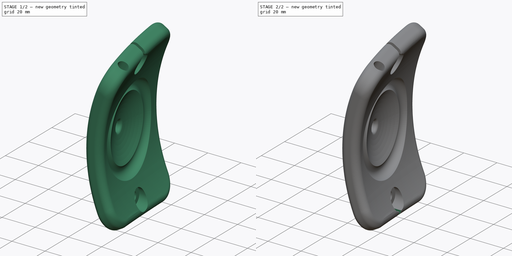
[diagram: build sequence overview — one tinted view per stage of 2, left to right]
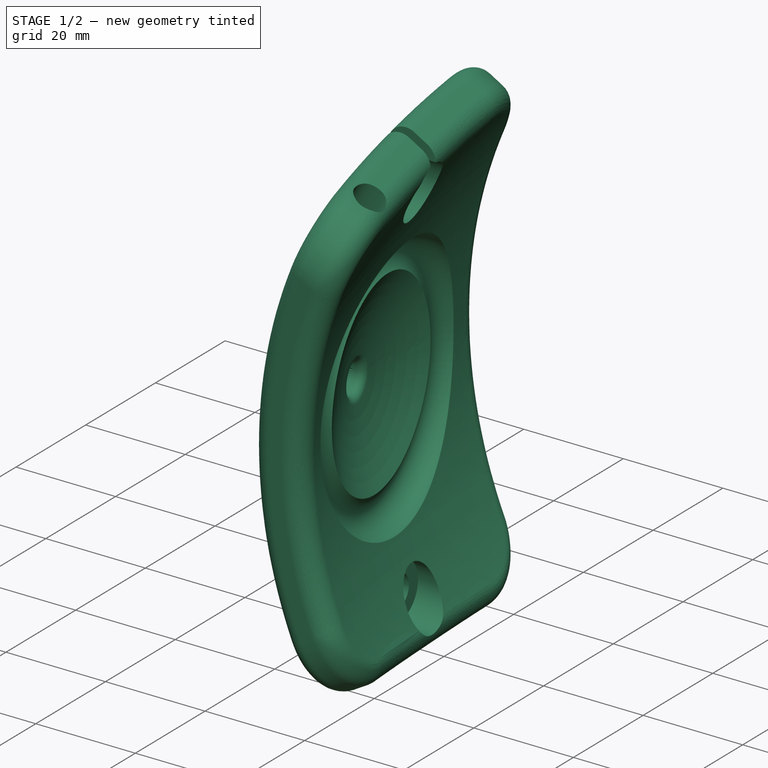
[diagram: stage 1 of 2 — iso view after this stage's code; geometry added in this stage tinted green]
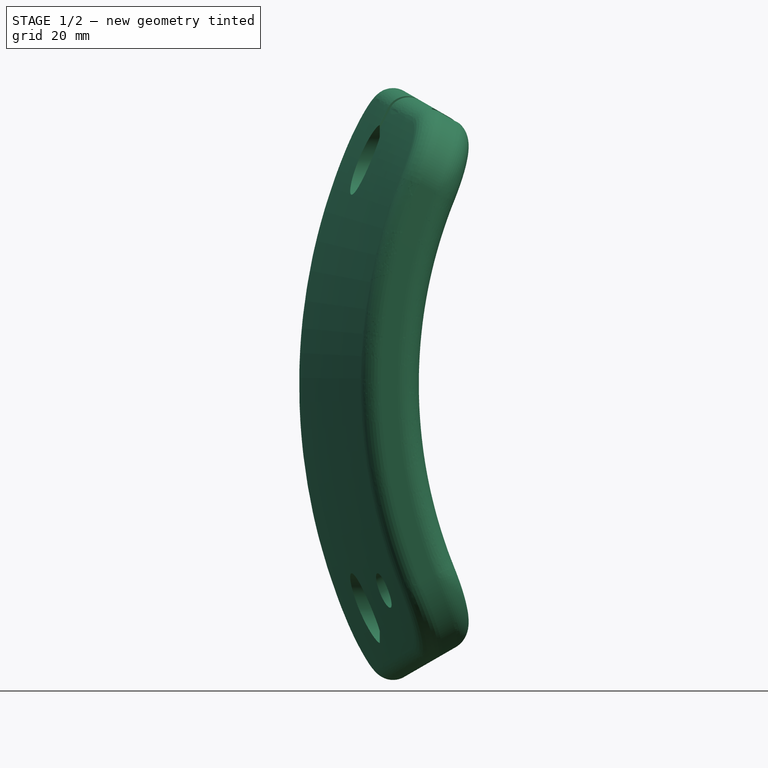
[diagram: stage 1 of 2 — front view after this stage's code; geometry added in this stage tinted green]
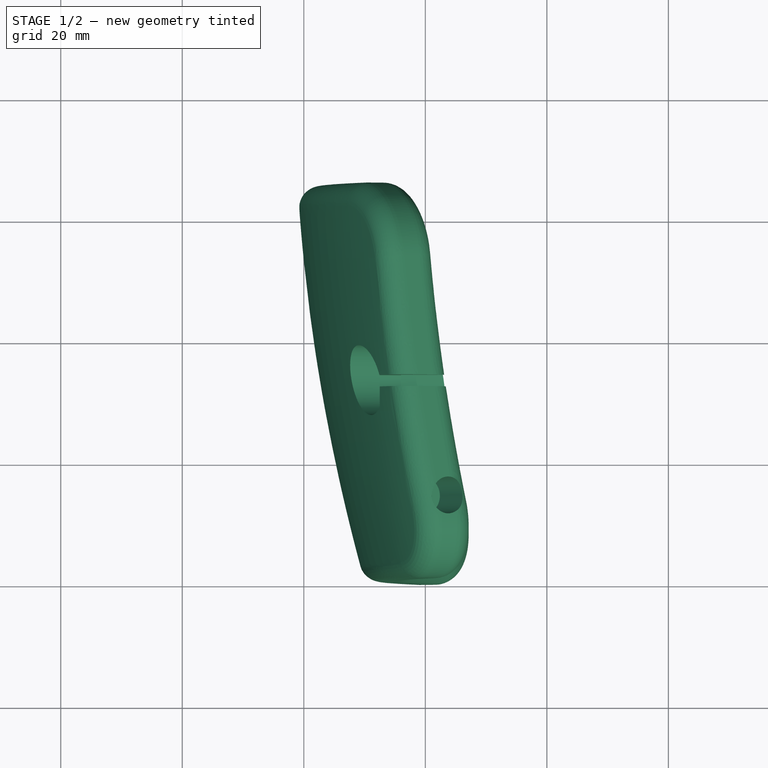
[diagram: stage 1 of 2 — top view after this stage's code; geometry added in this stage tinted green]
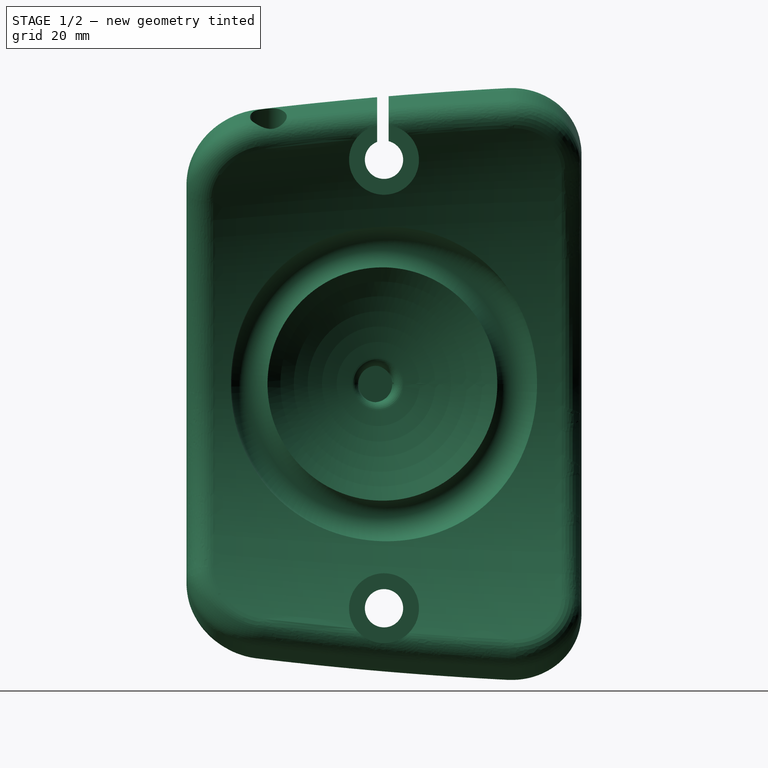
[diagram: stage 1 of 2 — right view after this stage's code; geometry added in this stage tinted green]
FCSTD DOCUMENT  (FreeCAD 0.17R13541 (Git))
Label: left_patch_v2
License: All rights reserved
LicenseURL: http://en.wikipedia.org/wiki/All_rights_reserved
objects: Sketcher::SketchObject×10, PartDesign::Plane×4, PartDesign::Pocket×4, PartDesign::Fillet×3, PartDesign::Groove×2, PartDesign::Mirrored×2, PartDesign::Revolution×1, PartDesign::Line×1, PartDesign::SubtractiveSphere×1, PartDesign::SubtractiveTorus×1, PartDesign::SubtractiveCylinder×1, PartDesign::SubtractiveLoft×1, PartDesign::Body×1
note: 43 computed .brp shape members not serialized (recipe doc carries the construction recipe); baked Part::Feature solids carry a one-line shape summary decoded from their .brp

FEATURE [Sketcher::SketchObject] Sketch
  MapMode = 5
  Support = -> [XY_Plane]
  sketch-geometry (14):
    g0: LineSegment StartX=-90 StartY=0 StartZ=0 EndX=-80 EndY=0 EndZ=0
    g1: LineSegment StartX=-101 StartY=65 StartZ=0 EndX=-91 EndY=65 EndZ=0
    g2: Circle [constr] CenterX=-101 CenterY=65 CenterZ=0 NormalX=0 NormalY=0 NormalZ=1 AngleXU=0 Radius=1
    g3: Circle [constr] CenterX=-99 CenterY=32.5 CenterZ=0 NormalX=0 NormalY=0 NormalZ=1 AngleXU=0 Radius=1
    g4: Circle [constr] CenterX=-90 CenterY=0 CenterZ=0 NormalX=0 NormalY=0 NormalZ=1 AngleXU=0 Radius=1
    g5: BSplineCurve PolesCount=3 KnotsCount=2 Degree=2 IsPeriodic=0
    g6: GeomPoint [constr] X=-101 Y=65 Z=0
    g7: GeomPoint [constr] X=-90 Y=0 Z=0
    g8: Circle [constr] CenterX=-91 CenterY=65 CenterZ=0 NormalX=0 NormalY=0 NormalZ=1 AngleXU=0 Radius=1
    g9: Circle [constr] CenterX=-89 CenterY=32.5 CenterZ=0 NormalX=0 NormalY=0 NormalZ=1 AngleXU=0 Radius=1
    g10: Circle [constr] CenterX=-80 CenterY=0 CenterZ=0 NormalX=0 NormalY=0 NormalZ=1 AngleXU=0 Radius=1
    g11: BSplineCurve PolesCount=3 KnotsCount=2 Degree=2 IsPeriodic=0
    g12: GeomPoint [constr] X=-91 Y=65 Z=0
    g13: GeomPoint [constr] X=-80 Y=0 Z=0
  constraints (32):
    c: Horizontal(g0)
    c: Horizontal(g1)
    c: Coincident(g2,g1)
    c: Radius(g2) = 1
    c: Equal(g2,g3)
    c: Equal(g2,g4)
    c: Coincident(g4,g0)
    c: InternalAlignment(g2,g5)
    c: InternalAlignment(g3,g5)
    c: InternalAlignment(g4,g5)
    c: InternalAlignment(g6,g5)
    c: InternalAlignment(g7,g5)
    c: Coincident(g8,g1)
    c: Radius(g8) = 1
    c: Equal(g8,g9)
    c: Equal(g8,g10)
    c: Coincident(g10,g0)
    c: InternalAlignment(g8,g11)
    c: InternalAlignment(g9,g11)
    c: InternalAlignment(g10,g11)
    c: InternalAlignment(g12,g11)
    c: InternalAlignment(g13,g11)
    c: DistanceX(g1,g1) = 10
    c: DistanceX(g0,g0) = 10
    c: DistanceY(g0,g1) = 65
    c: DistanceY(g0,g-1) = 0
    c: DistanceY(g0,g9) = 32.5
    c: DistanceY(g0,g3) = 32.5
    c: DistanceX(g0,g-1) = 80
    c: DistanceX(g3,g9) = 10
    c: DistanceX(g9,g0) = 9
    c: DistanceX(g1,g0) = 11
FEATURE [PartDesign::Revolution] Revolution
  Angle = 60
  Axis = (0,1,0)
  Base = (0,0,0)
  Midplane = true
  Profile = -> Sketch
  ReferenceAxis = -> Sketch [V_Axis]
FEATURE [Sketcher::SketchObject] Sketch001
  MapMode = 5
  Support = -> [XY_Plane]
  sketch-geometry (5):
    g0: ArcOfCircle CenterX=-94.4837 CenterY=33.5655 CenterZ=0 NormalX=0 NormalY=0 NormalZ=1 AngleXU=0 Radius=0.625 StartAngle=0.174533 EndAngle=3.31613
    g1: ArcOfCircle CenterX=-93.6155 CenterY=28.6415 CenterZ=0 NormalX=0 NormalY=0 NormalZ=1 AngleXU=0 Radius=0.625 StartAngle=3.31613 EndAngle=6.45772
    g2: LineSegment StartX=-95.0993 StartY=33.457 StartZ=0 EndX=-94.231 EndY=28.5329 EndZ=0
    g3: LineSegment StartX=-93.8682 StartY=33.674 StartZ=0 EndX=-93 EndY=28.75 EndZ=0
    g4: LineSegment [constr] StartX=-13 StartY=33.8377 StartZ=0 EndX=-13 EndY=-7.32293 EndZ=0
  constraints (12):
    c: Tangent(g0,g3) = 1.5708
    c: Tangent(g0,g2) = -1.5708
    c: Tangent(g2,g1) = -1.5708
    c: Tangent(g3,g1) = 1.5708
    c: Equal(g0,g1)
    c: Angle(g-1,g3) = 1.74533
    c: Distance(g1,g0) = 5
    c: Distance(g0,g0) = 1.25
    c: DistanceX(g1,g-1) = 93
    c: DistanceY(g-1,g1) = 28.75
    c: Vertical(g4)
    c: DistanceX(g1,g4) = 80
FEATURE [PartDesign::Line] DatumLine
  AttacherType = Attacher::AttachEngineLine
  AttachmentOffset = pos=(0,0,-270) rot=(0,1,0;0.174533rad)
  MapMode = 16
  Placement = pos=(-270,0,0) rot=(0.510274,0.60812,0.60812;2.19793rad)
  Support = -> [X_Axis]
FEATURE [PartDesign::SubtractiveSphere] Sphere
  Angle1 = -90
  Angle2 = 90
  Angle3 = 360
  AttacherType = Attacher::AttachEngine3D
  AttachmentOffset = pos=(0,0,223) rot=(0,0,1;0rad)
  BaseFeature = -> Revolution
  MapMode = 2
  Placement = pos=(-50.3879,38.7235,0) rot=(0.510274,0.60812,0.60812;2.19793rad)
  Radius = 42
  Support = -> [DatumLine]
FEATURE [PartDesign::SubtractiveTorus] Torus
  Angle1 = -180
  Angle2 = 180
  Angle3 = 360
  AttacherType = Attacher::AttachEngine3D
  AttachmentOffset = pos=(0,0,188.5) rot=(0,0,1;0rad)
  BaseFeature = -> Sphere
  MapMode = 2
  Placement = pos=(-84.3637,32.7327,0) rot=(0.510274,0.60812,0.60812;2.19793rad)
  Radius1 = 22
  Radius2 = 4
  Support = -> [DatumLine]
FEATURE [PartDesign::SubtractiveCylinder] Cylinder
  Angle = 360
  AttacherType = Attacher::AttachEngine3D
  AttachmentOffset = pos=(0,0,178) rot=(0,0,1;0rad)
  BaseFeature = -> Torus
  Height = 12
  MapMode = 2
  Placement = pos=(-94.7042,30.9094,0) rot=(0.510274,0.60812,0.60812;2.19793rad)
  Radius = 3
  Support = -> [DatumLine]
FEATURE [PartDesign::Fillet] Fillet003
  Base = -> Cylinder [Edge7,Edge10,Edge9,Edge6]
  BaseFeature = -> Cylinder
  Placement = pos=(-94.7042,30.9094,0) rot=(0.510274,0.60812,0.60812;2.19793rad)
  Radius = 12
FEATURE [PartDesign::Plane] DatumPlane
  AttachmentOffset = pos=(0,0,-32.5) rot=(0,0,1;0rad)
  MapMode = 5
  Placement = pos=(0,32.5,3e-12) rot=(1,0,0;1.5708rad)
  Support = -> [XZ_Plane]
FEATURE [Sketcher::SketchObject] Sketch002
  MapMode = 5
  Placement = pos=(0,32.5,3e-12) rot=(1,0,0;1.5708rad)
  Support = -> [DatumPlane]
  sketch-geometry (10):
    g0: LineSegment StartX=-68 StartY=42.65 StartZ=0 EndX=-84 EndY=42.65 EndZ=0
    g1: LineSegment StartX=-84 StartY=42.65 StartZ=0 EndX=-84 EndY=40.05 EndZ=0
    g2: LineSegment StartX=-86 StartY=40.15 StartZ=0 EndX=-86 EndY=40.15 EndZ=0
    g3: LineSegment StartX=-87.5 StartY=40.05 StartZ=0 EndX=-87.5 EndY=42.65 EndZ=0
    g4: LineSegment StartX=-87.5 StartY=42.65 StartZ=0 EndX=-100 EndY=42.65 EndZ=0
    g5: LineSegment StartX=-100 StartY=42.65 StartZ=0 EndX=-100 EndY=36.9 EndZ=0
    g6: LineSegment StartX=-100 StartY=36.9 StartZ=0 EndX=-68 EndY=36.9 EndZ=0
    g7: LineSegment StartX=-68 StartY=36.9 StartZ=0 EndX=-68 EndY=42.65 EndZ=0
    g8: LineSegment [constr] StartX=-100 StartY=36.9 StartZ=0 EndX=-104.145 EndY=36.9 EndZ=0
    g9: LineSegment StartX=-87.5 StartY=40.05 StartZ=0 EndX=-84 EndY=40.05 EndZ=0
  constraints (27):
    c: Horizontal(g0)
    c: Coincident(g0,g1)
    c: Vertical(g1)
    c: Vertical(g2)
    c: Vertical(g3)
    c: Coincident(g3,g4)
    c: Horizontal(g4)
    c: Coincident(g4,g5)
    c: Vertical(g5)
    c: Coincident(g5,g6)
    c: Horizontal(g6)
    c: Coincident(g6,g7)
    c: Vertical(g7)
    c: Coincident(g7,g0)
    c: DistanceY(g7,g7) = 5.75
    c: DistanceY(g5,g5) = 5.75
    c: DistanceY(g-1,g6) = 36.9
    c: DistanceX(g6,g6) = 32
    c: DistanceX(g4,g4) = 12.5
    c: DistanceX(g6,g-1) = 68
    c: Coincident(g8,g5)
    c: Horizontal(g8)
    c: Coincident(g9,g3)
    c: Coincident(g9,g1)
    c: DistanceX(g9,g9) = 3.5
    c: DistanceY(g6,g1) = 3.15
    c: Horizontal(g9)
FEATURE [PartDesign::Fillet] Fillet
  Base = -> Fillet003 [Edge11,Edge1]
  BaseFeature = -> Fillet003
  Placement = pos=(-94.7042,30.9094,0) rot=(0.510274,0.60812,0.60812;2.19793rad)
  Radius = 3.5
FEATURE [PartDesign::Fillet] Fillet004
  Base = -> Fillet [Edge61]
  BaseFeature = -> Fillet
  Placement = pos=(-94.7042,30.9094,0) rot=(0.510274,0.60812,0.60812;2.19793rad)
  Radius = 1.5
FEATURE [PartDesign::Groove] Groove
  Angle = 360
  Axis = (-4.14485,0,0)
  Base = (-100,32.5,36.9)
  BaseFeature = -> Fillet004
  Placement = pos=(-94.7042,30.9094,0) rot=(0.510274,0.60812,0.60812;2.19793rad)
  Profile = -> Sketch002
  ReferenceAxis = -> Sketch002 [Axis0]
FEATURE [PartDesign::Mirrored] Mirrored
  BaseFeature = -> Groove
  MirrorPlane = -> XY_Plane
  Originals = -> [Groove]
  Placement = pos=(-94.7042,30.9094,0) rot=(0.510274,0.60812,0.60812;2.19793rad)
FEATURE [PartDesign::Plane] DatumPlane001
  AttachmentOffset = pos=(0,0,0) rot=(0,1,0;0.523599rad)
  MapMode = 5
  Placement = pos=(0,0,0) rot=(0,1,0;0.523599rad)
  Support = -> [XY_Plane]
FEATURE [Sketcher::SketchObject] Sketch003
  MapMode = 5
  Placement = pos=(0,0,0) rot=(0,1,0;0.523599rad)
  Support = -> [DatumPlane001]
  sketch-geometry (1):
    g0: Circle CenterX=-88.0221 CenterY=13.481 CenterZ=0 NormalX=0 NormalY=0 NormalZ=1 AngleXU=0 Radius=3.025
  constraints (1):
    c: Radius(g0) = 3.025
FEATURE [PartDesign::Pocket] Pocket
  BaseFeature = -> Mirrored
  Length = 8
  Length2 = 100
  Placement = pos=(-94.7042,30.9094,0) rot=(0.510274,0.60812,0.60812;2.19793rad)
  Profile = -> Sketch003
  Type = 0
FEATURE [Sketcher::SketchObject] Sketch004
  MapMode = 5
  Placement = pos=(-75.0282,30.9094,34.0799) rot=(-0.247812,0.288526,-0.924847;1.49687rad)
  Support = -> [Pocket]
  sketch-geometry (1):
    g0: Circle CenterX=16.4108 CenterY=-8.60062 CenterZ=0 NormalX=0 NormalY=0 NormalZ=1 AngleXU=0 Radius=1.5
  constraints (1):
    c: Radius(g0) = 1.5
FEATURE [PartDesign::Plane] DatumPlane002
  AttachmentOffset = pos=(0,0,0) rot=(0,1,0;0.261799rad)
  MapMode = 5
  Placement = pos=(0,0,0) rot=(0,1,0;0.261799rad)
  Support = -> [XY_Plane]
FEATURE [Sketcher::SketchObject] Sketch005
  MapMode = 5
  Placement = pos=(0,0,0) rot=(0,1,0;0.261799rad)
  Support = -> [DatumPlane002]
  sketch-geometry (5):
    g0: Ellipse CenterX=-90.2422 CenterY=17.6008 CenterZ=0 NormalX=0 NormalY=0 NormalZ=1 MajorRadius=2.5 MinorRadius=0.55 AngleXU=1.74989
    g1: LineSegment [constr] StartX=-90.6875 StartY=20.0608 StartZ=0 EndX=-89.7968 EndY=15.1407 EndZ=0
    g2: LineSegment [constr] StartX=-90.7834 StartY=17.5028 StartZ=0 EndX=-89.701 EndY=17.6987 EndZ=0
    g3: GeomPoint X=-90.6766 Y=20.0005 Z=0
    g4: GeomPoint X=-89.8077 Y=15.201 Z=0
  constraints (3):
    c: InternalAlignment(g1-g4 -> g0) x4
    c: Distance(g2,g2) = 1.1
    c: Distance(g1) = 5
FEATURE [PartDesign::SubtractiveLoft] SubtractiveLoft
  BaseFeature = -> Pocket
  Closed = false
  Placement = pos=(-94.7042,30.9094,0) rot=(0.510274,0.60812,0.60812;2.19793rad)
  Profile = -> Sketch001
  Ruled = false
  Sections = -> [Sketch005,Sketch004]
FEATURE [PartDesign::Plane] DatumPlane003
  AttachmentOffset = pos=(0,-240,0) rot=(-1,0,0;0.436332rad)
  MapMode = 5
  Placement = pos=(2.7e-11,-2.7e-11,-240) rot=(0.473306,0.473306,0.742942;1.86366rad)
  Support = -> [YZ_Plane]
FEATURE [Sketcher::SketchObject] Sketch006
  MapMode = 5
  Placement = pos=(2.7e-11,-2.7e-11,-240) rot=(0.473306,0.473306,0.742942;1.86366rad)
  Support = -> [DatumPlane003]
  sketch-geometry (1):
    g0: Circle CenterX=12.8606 CenterY=223.407 CenterZ=0 NormalX=0 NormalY=0 NormalZ=1 AngleXU=0 Radius=3.025
  constraints (1):
    c: Radius(g0) = 3.025
FEATURE [PartDesign::Pocket] Pocket001
  BaseFeature = -> SubtractiveLoft
  Length = 13
  Length2 = 100
  Placement = pos=(-94.7042,30.9094,0) rot=(0.510274,0.60812,0.60812;2.19793rad)
  Profile = -> Sketch006
  Reversed = true
  Type = 0
FEATURE [Sketcher::SketchObject] Sketch007
  MapMode = 5
  Support = -> [XY_Plane]
  sketch-geometry (1):
    g0: Circle CenterX=-89.3905 CenterY=13.0817 CenterZ=0 NormalX=0 NormalY=0 NormalZ=1 AngleXU=0 Radius=1.5
  constraints (1):
    c: Radius(g0) = 1.5
FEATURE [Sketcher::SketchObject] Sketch009
  MapMode = 5
  Placement = pos=(0,0,0) rot=(0,1,0;0.523599rad)
  Support = -> [DatumPlane001]
  sketch-geometry (4):
    g0: LineSegment StartX=-102.706 StartY=33.27 StartZ=0 EndX=-82.0468 EndY=33.27 EndZ=0
    g1: LineSegment StartX=-82.0468 StartY=33.27 StartZ=0 EndX=-82.0468 EndY=31.37 EndZ=0
    g2: LineSegment StartX=-82.0468 StartY=31.37 StartZ=0 EndX=-102.706 EndY=31.37 EndZ=0
    g3: LineSegment StartX=-102.706 StartY=31.37 StartZ=0 EndX=-102.706 EndY=33.27 EndZ=0
  constraints (10):
    c: Coincident(g0,g1)
    c: Coincident(g1,g2)
    c: Coincident(g2,g3)
    c: Coincident(g3,g0)
    c: Horizontal(g0)
    c: Horizontal(g2)
    c: Vertical(g1)
    c: Vertical(g3)
    c: DistanceY(g3,g3) = 1.9
    c: DistanceY(g-1,g1) = 31.37
FEATURE [PartDesign::Body] Body
  Group = -> [Sketch,Revolution,Sphere,DatumLine,Torus,Sketch001,Cylinder,Fillet003,Fillet,Fillet004,DatumPlane,Sketch002,Groove,Mirrored,DatumPlane001,Sketch003,Pocket,Sketch004,DatumPlane002,Sketch005,SubtractiveLoft,DatumPlane003,Sketch006,Pocket001,Sketch007,Sketch008,Pocket002,Groove001,Sketch009,Pocket003,Mirrored001]
  Origin = -> Origin
  Tip = -> Mirrored001
FEATURE [PartDesign::Groove] Groove001
  Angle = 50.5
  Axis = (0,1,0)
  Base = (0,0,0)
  BaseFeature = -> Pocket002
  Midplane = true
  Placement = pos=(-94.7042,30.9094,0) rot=(0.510274,0.60812,0.60812;2.19793rad)
  Profile = -> Sketch007
  ReferenceAxis = -> Sketch007 [V_Axis]
  Reversed = true
FEATURE [Sketcher::SketchObject] Sketch008
  MapMode = 5
  Placement = pos=(-97.0581,30.9094,-1.09763) rot=(0.624218,0.672465,-0.397671;3.9511rad)
  Support = -> [Groove001]
  sketch-geometry (5):
    g0: Ellipse CenterX=-20.3384 CenterY=32.7686 CenterZ=0 NormalX=0 NormalY=0 NormalZ=1 MajorRadius=3.78865 MinorRadius=1.56691 AngleXU=1.64488
    g1: LineSegment [constr] StartX=-20.6188 StartY=36.5469 StartZ=0 EndX=-20.058 EndY=28.9904 EndZ=0
    g2: LineSegment [constr] StartX=-21.901 StartY=32.6527 StartZ=0 EndX=-18.7758 EndY=32.8846 EndZ=0
    g3: GeomPoint X=-20.5937 Y=36.2086 Z=0
    g4: GeomPoint X=-20.0831 Y=29.3287 Z=0
  constraints (1):
    c: InternalAlignment(g1-g4 -> g0) x4
FEATURE [PartDesign::Pocket] Pocket002
  BaseFeature = -> Pocket001
  Length = 1.5
  Length2 = 100
  Placement = pos=(-94.7042,30.9094,0) rot=(0.510274,0.60812,0.60812;2.19793rad)
  Profile = -> Sketch008
  Type = 0
FEATURE [PartDesign::Pocket] Pocket003
  BaseFeature = -> Groove001
  Length = 9.5
  Length2 = 100
  Placement = pos=(-94.7042,30.9094,0) rot=(0.510274,0.60812,0.60812;2.19793rad)
  Profile = -> Sketch009
  Type = 0
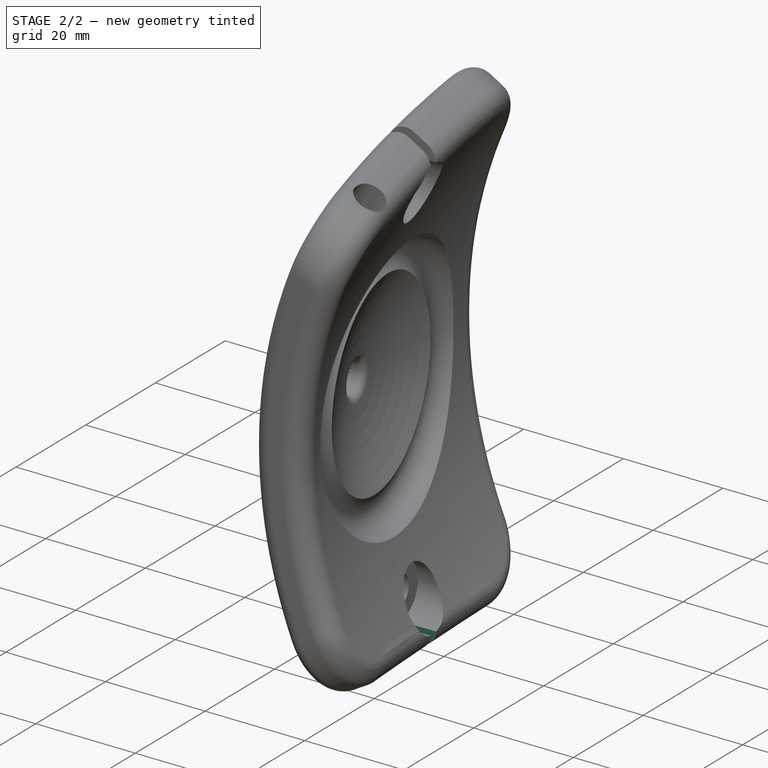
[diagram: stage 2 of 2 — iso view after this stage's code; geometry added in this stage tinted green]
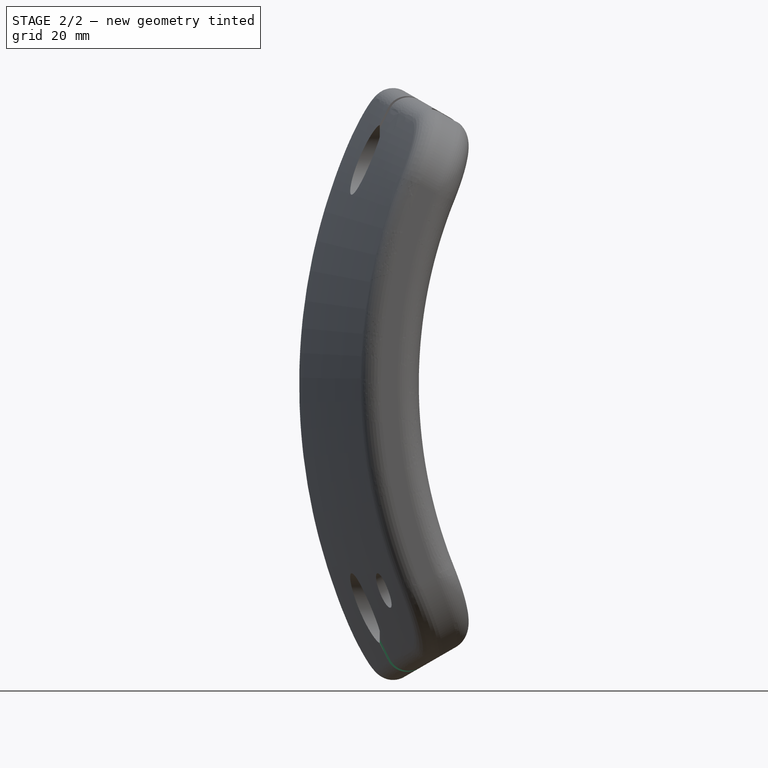
[diagram: stage 2 of 2 — front view after this stage's code; geometry added in this stage tinted green]
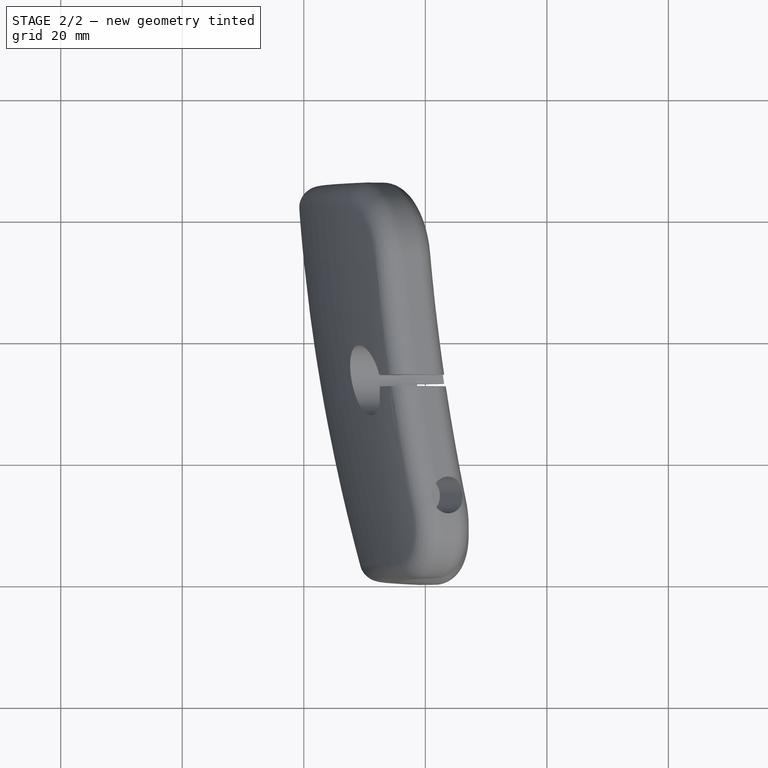
[diagram: stage 2 of 2 — top view after this stage's code; geometry added in this stage tinted green]
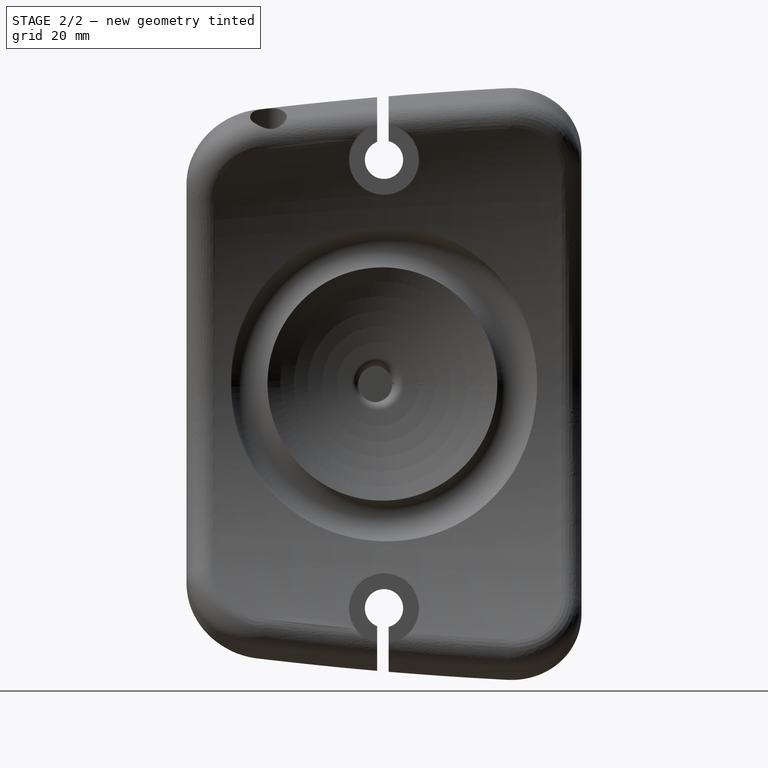
[diagram: stage 2 of 2 — right view after this stage's code; geometry added in this stage tinted green]
FEATURE [PartDesign::Mirrored] Mirrored001
  BaseFeature = -> Pocket003
  MirrorPlane = -> XY_Plane
  Originals = -> [Pocket003]
  Placement = pos=(-94.7042,30.9094,0) rot=(0.510274,0.60812,0.60812;2.19793rad)
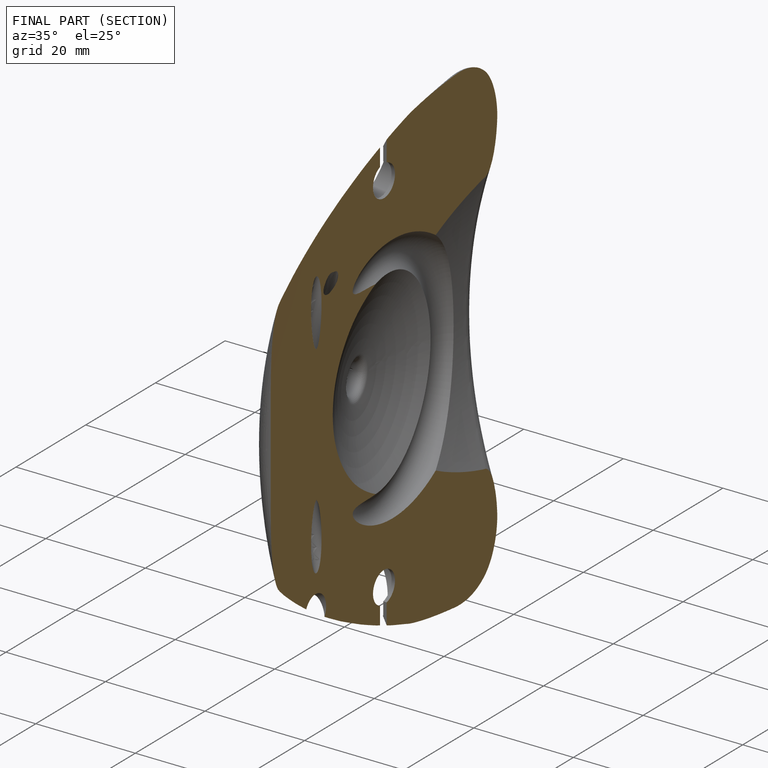
[diagram: finished part — half-section view (interior)]
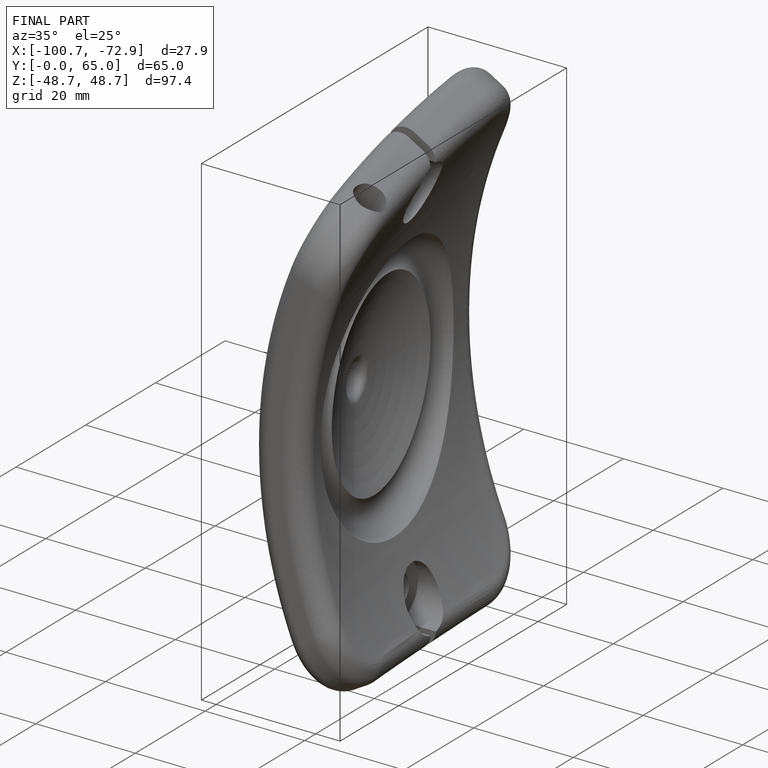
[diagram: finished part — iso view with bounding-box wireframe]
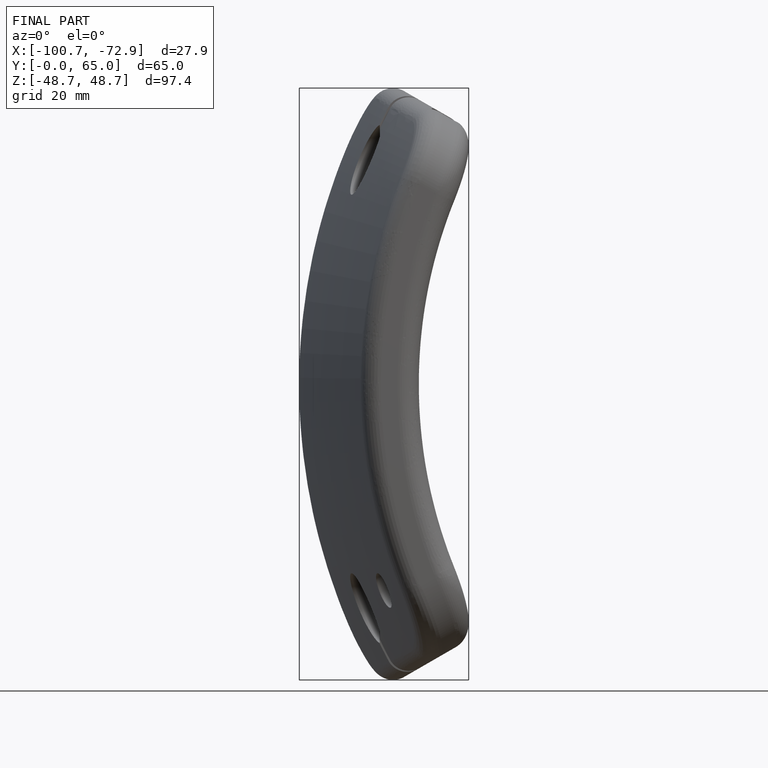
[diagram: finished part — front view with bounding-box wireframe]
